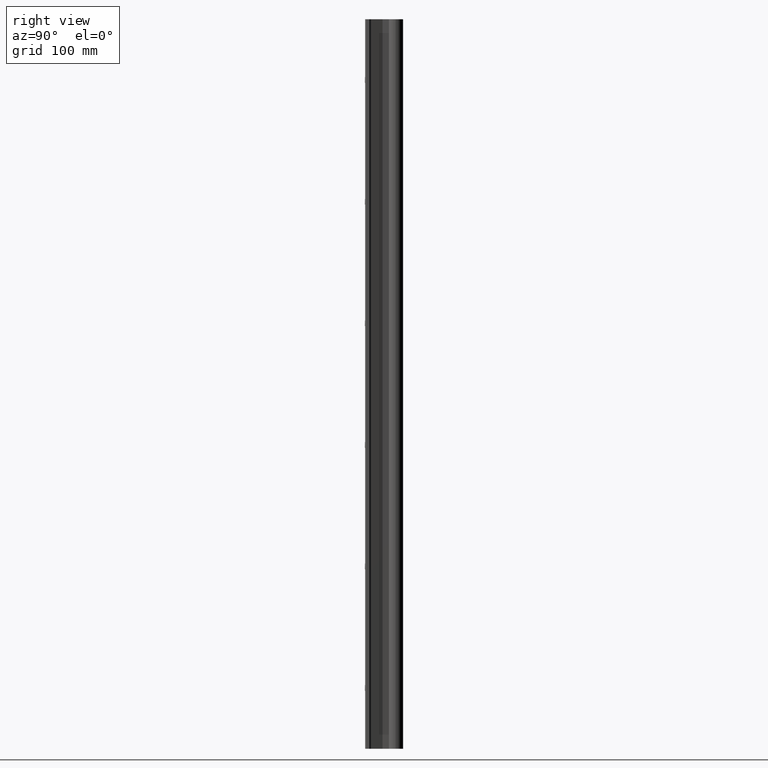
[diagram: clean part render]
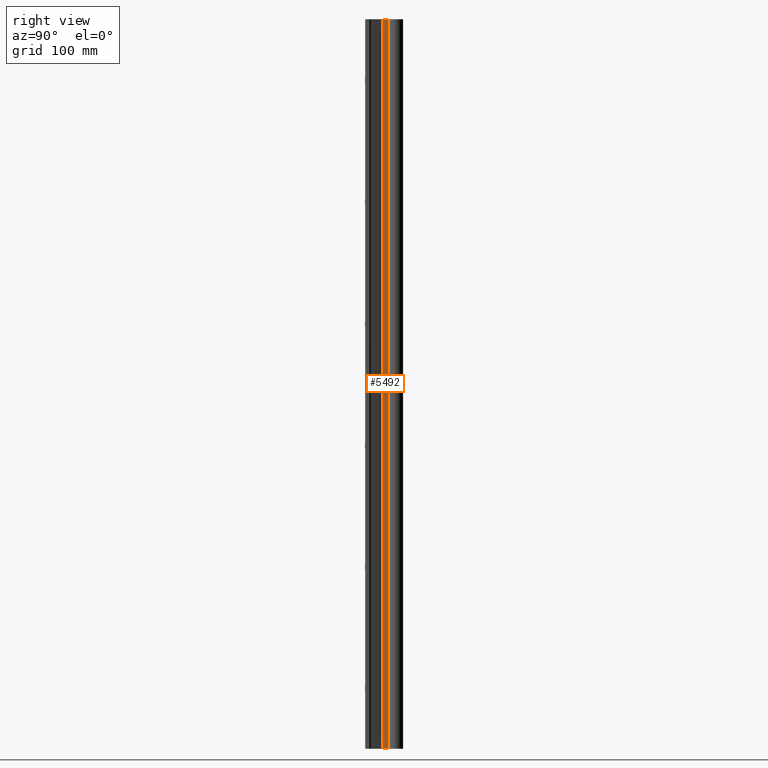
[diagram: same view with one face highlighted and labeled with its STEP entity id]
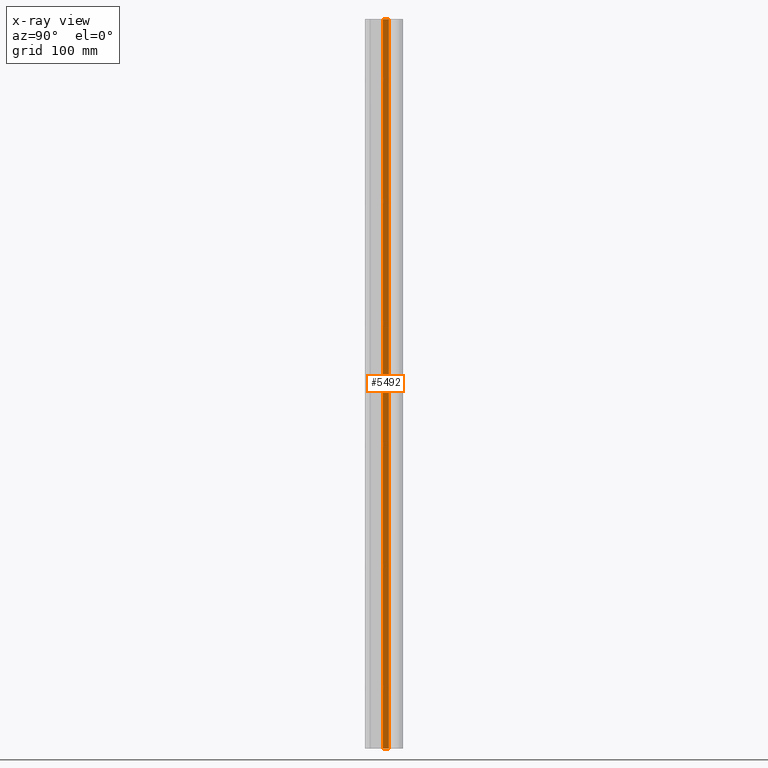
[diagram: x-ray of the same camera — body ghosted, the highlighted face saturated]
A machine part, right view. The second image highlights one B-rep face of the part: STEP entity #5492.
The next image is the same camera in x-ray: the body ghosted, the highlighted face saturated — about 0% of this face is hidden behind the body in this view.
In plain terms, the highlighted planar face has unit normal (1, 0, 0).
Its self-contained STEP definition (entity closure, byte-faithful):
#244 = VERTEX_POINT ( 'NONE', #4430 ) ;
#252 = DIRECTION ( 'NONE',  ( 0.000000000000000000, 0.000000000000000000, 1.000000000000000000 ) ) ;
#621 = DIRECTION ( 'NONE',  ( -4.585192214400725306E-16, 1.000000000000000000, 0.000000000000000000 ) ) ;
#637 = DIRECTION ( 'NONE',  ( 0.000000000000000000, 0.000000000000000000, 1.000000000000000000 ) ) ;
#1114 = VERTEX_POINT ( 'NONE', #4379 ) ;
#1190 = VECTOR ( 'NONE', #12393, 39.37007874015748143 ) ;
#2407 = CARTESIAN_POINT ( 'NONE',  ( 0.1874999999999998335, 0.8712787932000009006, -38.10463218188032641 ) ) ;
#2693 = LINE ( 'NONE', #9003, #13096 ) ;
#2727 = DIRECTION ( 'NONE',  ( -4.585192214400726293E-16, 1.000000000000000000, 0.000000000000000000 ) ) ;
#3723 = CARTESIAN_POINT ( 'NONE',  ( 0.1874999999999998335, 0.8712787932000009006, 0.000000000000000000 ) ) ;
#3980 = EDGE_CURVE ( 'NONE', #5178, #7443, #13428, .T. ) ;
#4379 = CARTESIAN_POINT ( 'NONE',  ( 0.1874999999999998335, 0.8712787932000009006, 0.000000000000000000 ) ) ;
#4430 = CARTESIAN_POINT ( 'NONE',  ( 0.1874999999999996947, 1.169177754238574396, 0.000000000000000000 ) ) ;
#4566 = VECTOR ( 'NONE', #252, 39.37007874015748143 ) ;
#4667 = FACE_OUTER_BOUND ( 'NONE', #6068, .T. ) ;
#4746 = LINE ( 'NONE', #3723, #11306 ) ;
#4799 = PLANE ( 'NONE',  #12455 ) ;
#5178 = VERTEX_POINT ( 'NONE', #5725 ) ;
#5492 = ADVANCED_FACE ( 'NONE', ( #4667 ), #4799, .T. ) ;
#5700 = CARTESIAN_POINT ( 'NONE',  ( 0.1874999999999998335, 0.8712787932000009006, -38.10463218188032641 ) ) ;
#5725 = CARTESIAN_POINT ( 'NONE',  ( 0.1874999999999996947, 1.169177754238574174, -36.00000000000000000 ) ) ;
#6068 = EDGE_LOOP ( 'NONE', ( #7545, #13138, #10038, #13360 ) ) ;
#7443 = VERTEX_POINT ( 'NONE', #11159 ) ;
#7545 = ORIENTED_EDGE ( 'NONE', *, *, #3980, .F. ) ;
#8185 = CARTESIAN_POINT ( 'NONE',  ( 0.1874999999999998335, 0.8712787932000009006, -36.00000000000000000 ) ) ;
#9003 = CARTESIAN_POINT ( 'NONE',  ( 0.1874999999999996947, 1.169177754238574174, -38.10463218188032641 ) ) ;
#10038 = ORIENTED_EDGE ( 'NONE', *, *, #10538, .F. ) ;
#10538 = EDGE_CURVE ( 'NONE', #1114, #244, #4746, .T. ) ;
#11081 = DIRECTION ( 'NONE',  ( 1.000000000000000000, 4.585192214400726293E-16, -0.000000000000000000 ) ) ;
#11159 = CARTESIAN_POINT ( 'NONE',  ( 0.1874999999999998335, 0.8712787932000009006, -36.00000000000000000 ) ) ;
#11306 = VECTOR ( 'NONE', #621, 39.37007874015748143 ) ;
#11389 = EDGE_CURVE ( 'NONE', #5178, #244, #2693, .T. ) ;
#12277 = EDGE_CURVE ( 'NONE', #7443, #1114, #13051, .T. ) ;
#12393 = DIRECTION ( 'NONE',  ( 4.585192214400726293E-16, -1.000000000000000000, 0.000000000000000000 ) ) ;
#12455 = AXIS2_PLACEMENT_3D ( 'NONE', #5700, #11081, #2727 ) ;
#13051 = LINE ( 'NONE', #2407, #4566 ) ;
#13096 = VECTOR ( 'NONE', #637, 39.37007874015748143 ) ;
#13138 = ORIENTED_EDGE ( 'NONE', *, *, #11389, .T. ) ;
#13360 = ORIENTED_EDGE ( 'NONE', *, *, #12277, .F. ) ;
#13428 = LINE ( 'NONE', #8185, #1190 ) ;